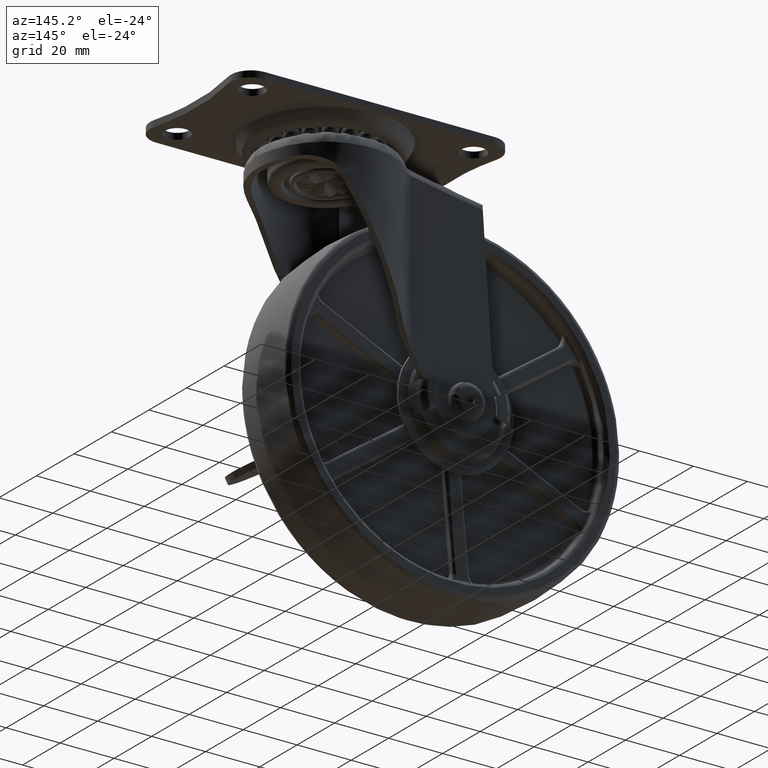
[diagram: clean part render]
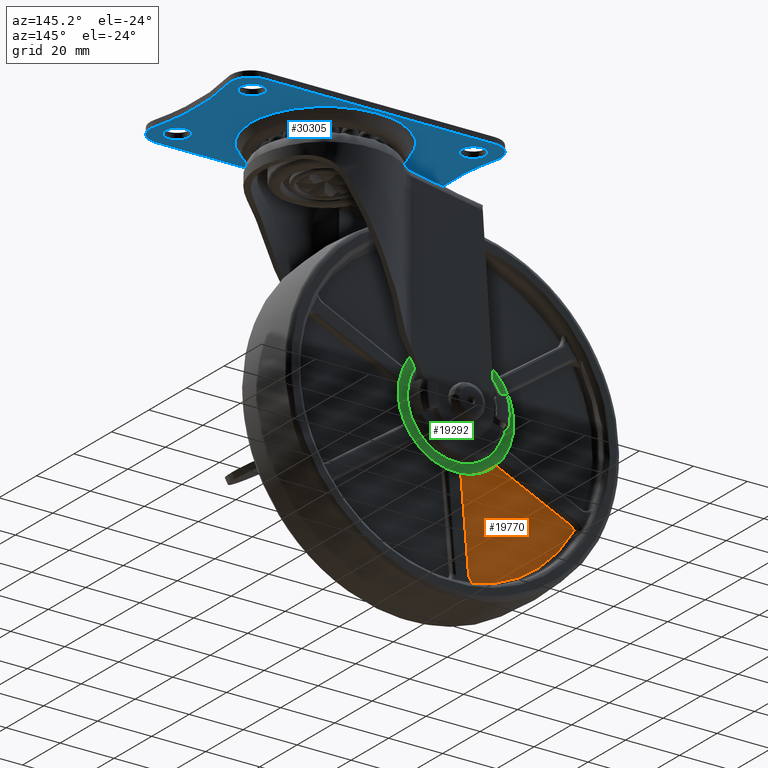
[diagram: same view with three faces highlighted in distinct colors, each labeled with its STEP entity id]
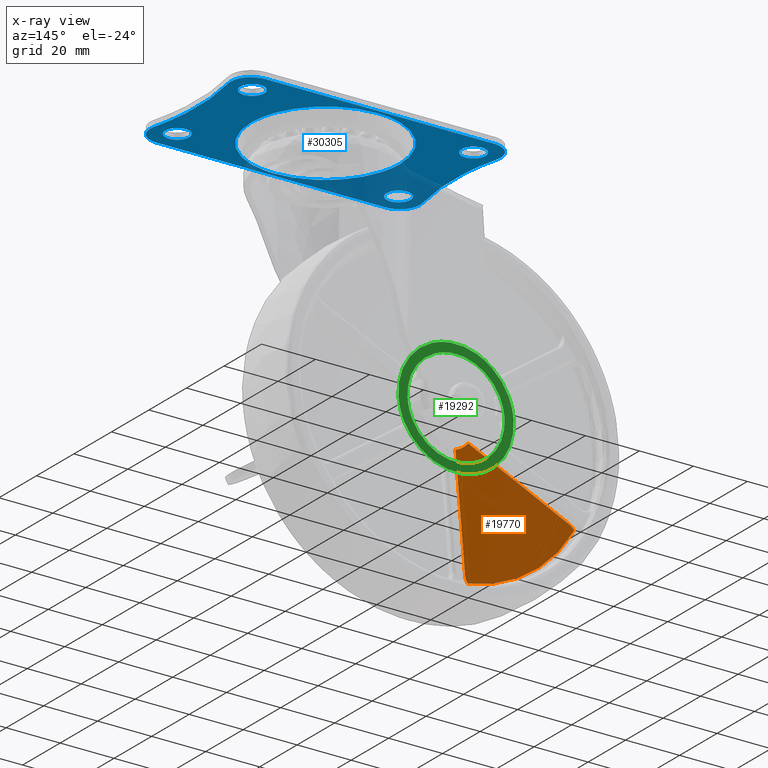
[diagram: x-ray of the same camera — body ghosted, the three highlighted faces saturated]
A machine part, auxiliary view with three faces highlighted in distinct colors.
The next image is the same camera in x-ray (body ghosted, the three faces saturated) — at least one of them is partly hidden behind the body in this view.
Their STEP definitions:

[orange] entity #19770 — the highlighted face is a freeform B-spline surface patch.
#15818=CARTESIAN_POINT('',(-3.754210223986700,7.500000000000000,-54.613724710466002));
#15819=VERTEX_POINT('',#15818);
#15848=CARTESIAN_POINT('',(-3.0,7.500000000000000,-52.276023119174297));
#15849=VERTEX_POINT('',#15848);
#15850=CARTESIAN_POINT('',(-3.754210223986700,7.500000000000000,-54.613724710466002));
#15851=CARTESIAN_POINT('',(-3.526080819406298,7.500000000000007,-54.297241552202962));
#15852=CARTESIAN_POINT('',(-3.139503482989372,7.499999999999996,-53.550188960875467));
#15853=CARTESIAN_POINT('',(-2.999710204292323,7.500000000000000,-52.718169552875153));
#15854=CARTESIAN_POINT('',(-3.0,7.500000000000000,-52.276023119174297));
#15855=B_SPLINE_CURVE_WITH_KNOTS('',3,(#15850,#15851,#15852,#15853,#15854),.UNSPECIFIED.,.F.,.U.,(4,1,4),(0.000000071150296,1.170372229220810,2.496726600823888),.UNSPECIFIED.);
#15856=EDGE_CURVE('',#15819,#15849,#15855,.T.);
#15939=CARTESIAN_POINT('',(-3.0,7.500000000000000,-11.029539681949579));
#15940=VERTEX_POINT('',#15939);
#15941=CARTESIAN_POINT('',(-3.0,7.500000000000000,-52.276023119174297));
#15942=CARTESIAN_POINT('',(-3.0,7.500000000000000,-11.029539681949579));
#15943=QUASI_UNIFORM_CURVE('',1,(#15941,#15942),.UNSPECIFIED.,.F.,.U.);
#15944=EDGE_CURVE('',#15849,#15940,#15943,.T.);
#16854=CARTESIAN_POINT('',(-45.419767882560201,7.500000000000000,-30.558103780352699));
#16855=VERTEX_POINT('',#16854);
#16887=CARTESIAN_POINT('',(-43.772364030027653,7.500000000000000,-28.736087770940451));
#16888=VERTEX_POINT('',#16887);
#16894=CARTESIAN_POINT('',(-43.772364030027653,7.500000000000000,-28.736087770940451));
#16895=CARTESIAN_POINT('',(-44.177986110781553,7.500000000000004,-28.969871932194881));
#16896=CARTESIAN_POINT('',(-44.824363315072013,7.499999999999998,-29.514214811508559));
#16897=CARTESIAN_POINT('',(-45.270379039674182,7.500000000000006,-30.226050552498972));
#16898=CARTESIAN_POINT('',(-45.419767882560201,7.500000000000000,-30.558103780352699));
#16899=B_SPLINE_CURVE_WITH_KNOTS('',3,(#16894,#16895,#16896,#16897,#16898),.UNSPECIFIED.,.F.,.U.,(4,1,4),(0.000000071151543,1.404388129151049,2.496726600823849),.UNSPECIFIED.);
#16900=EDGE_CURVE('',#16888,#16855,#16899,.T.);
#16941=CARTESIAN_POINT('',(-8.051861556616881,7.500000000000000,-8.112846052328100));
#16942=VERTEX_POINT('',#16941);
#16952=CARTESIAN_POINT('',(-8.051861556616881,7.500000000000000,-8.112846052328100));
#16953=CARTESIAN_POINT('',(-43.772364030027653,7.500000000000000,-28.736087770940451));
#16954=QUASI_UNIFORM_CURVE('',1,(#16952,#16953),.UNSPECIFIED.,.F.,.U.);
#16955=EDGE_CURVE('',#16942,#16888,#16954,.T.);
#19733=CARTESIAN_POINT('',(-45.419767882560201,7.500000000000000,-30.558103780352699));
#19734=CARTESIAN_POINT('',(-43.609736960011134,7.500000000000002,-33.248974728528943));
#19735=CARTESIAN_POINT('',(-40.411395780435527,7.500000000000021,-37.194451417430678));
#19736=CARTESIAN_POINT('',(-34.620298148930999,7.500000000000007,-42.601150187488493));
#19737=CARTESIAN_POINT('',(-29.020267404686589,7.499999999999961,-46.625544773615687));
#19738=CARTESIAN_POINT('',(-21.660334474637740,7.499999999999929,-50.499520021979862));
#19739=CARTESIAN_POINT('',(-13.420539005613159,7.500000000000198,-53.369977065254510));
#19740=CARTESIAN_POINT('',(-6.989570762033117,7.499999999999834,-54.391577797609777));
#19741=CARTESIAN_POINT('',(-3.754210223986700,7.500000000000000,-54.613724710466002));
#19742=B_SPLINE_CURVE_WITH_KNOTS('',3,(#19733,#19734,#19735,#19736,#19737,#19738,#19739,#19740,#19741),.UNSPECIFIED.,.F.,.U.,(4,1,1,1,1,1,4),(0.000000043338687,9.728924780902183,15.177130503832350,23.738637583906339,30.354232765353760,40.083185701890663,49.812110439454869),.UNSPECIFIED.);
#19743=EDGE_CURVE('',#16855,#15819,#19742,.T.);
#19750=CARTESIAN_POINT('',(-47.538636798902061,7.500000000000000,-5.790127419615635));
#19751=CARTESIAN_POINT('',(-47.538636798902061,7.500000000000000,-56.936441264427202));
#19752=CARTESIAN_POINT('',(-0.881131462920420,7.500000000000000,-5.790127419615635));
#19753=CARTESIAN_POINT('',(-0.881131462920420,7.500000000000000,-56.936441264427202));
#19754=B_SPLINE_SURFACE_WITH_KNOTS('',1,1,((#19750,#19752),(#19751,#19753)),.UNSPECIFIED.,.F.,.F.,.U.,(2,2),(2,2),(0.0,51.146313844811559),(0.0,46.657505335981639),.UNSPECIFIED.);
#19755=ORIENTED_EDGE('',*,*,#15944,.F.);
#19756=ORIENTED_EDGE('',*,*,#15856,.F.);
#19757=ORIENTED_EDGE('',*,*,#19743,.F.);
#19758=ORIENTED_EDGE('',*,*,#16900,.F.);
#19759=ORIENTED_EDGE('',*,*,#16955,.F.);
#19760=CARTESIAN_POINT('',(-8.051861556616881,7.500000000000000,-8.112846052328100));
#19761=CARTESIAN_POINT('',(-7.310731054445864,7.500000000000016,-8.848973468509387));
#19762=CARTESIAN_POINT('',(-5.723758996752141,7.499999999999966,-10.040831458099509));
#19763=CARTESIAN_POINT('',(-3.889424334452520,7.500000000000035,-10.787833867550120));
#19764=CARTESIAN_POINT('',(-3.0,7.500000000000000,-11.029539681949579));
#19765=B_SPLINE_CURVE_WITH_KNOTS('',3,(#19760,#19761,#19762,#19763,#19764),.UNSPECIFIED.,.F.,.U.,(4,1,4),(0.000000024825960,3.133664931382584,5.898686501279778),.UNSPECIFIED.);
#19766=EDGE_CURVE('',#16942,#15940,#19765,.T.);
#19767=ORIENTED_EDGE('',*,*,#19766,.T.);
#19768=EDGE_LOOP('',(#19755,#19756,#19757,#19758,#19759,#19767));
#19769=FACE_OUTER_BOUND('',#19768,.T.);
#19770=ADVANCED_FACE('',(#19769),#19754,.F.);

[blue] entity #30305 — the highlighted face is a freeform B-spline surface patch.
#26216=CARTESIAN_POINT('',(2.400000000000000,20.0,83.199996999999996));
#26217=VERTEX_POINT('',#26216);
#26218=CARTESIAN_POINT('',(1.068699980865174,23.153263424187621,83.199997000106819));
#26219=VERTEX_POINT('',#26218);
#26220=CARTESIAN_POINT('',(2.400000000000000,20.0,83.199996999999996));
#26221=CARTESIAN_POINT('',(2.400799535555400,20.622666120967740,83.199997000021142));
#26222=CARTESIAN_POINT('',(2.146818653241267,21.793706653572450,83.199997000060634));
#26223=CARTESIAN_POINT('',(1.462756383495197,22.770463711283369,83.199997000093859));
#26224=CARTESIAN_POINT('',(1.068699980865174,23.153263424187621,83.199997000106819));
#26225=B_SPLINE_CURVE_WITH_KNOTS('',3,(#26220,#26221,#26222,#26223,#26224),.UNSPECIFIED.,.F.,.U.,(4,1,4),(0.000000119754218,1.867655777875394,3.515639993302355),.UNSPECIFIED.);
#26226=EDGE_CURVE('',#26217,#26219,#26225,.T.);
#26228=CARTESIAN_POINT('',(-1.999995359596425,15.600000000002449,83.199996999999996));
#26229=VERTEX_POINT('',#26228);
#26230=CARTESIAN_POINT('',(-1.999995359596425,15.600000000002449,83.199996999999996));
#26231=CARTESIAN_POINT('',(-1.604018796670275,15.599859424816639,83.199996999999840));
#26232=CARTESIAN_POINT('',(-0.848138780554023,15.702749843455379,83.199997000000323));
#26233=CARTESIAN_POINT('',(0.123630603866510,16.105242926993100,83.199996999999755));
#26234=CARTESIAN_POINT('',(1.010910588933266,16.730059546941678,83.199997000000252));
#26235=CARTESIAN_POINT('',(1.700145158964370,17.529082206929210,83.199996999999883));
#26236=CARTESIAN_POINT('',(2.256097337983336,18.668315929265560,83.199997000000096));
#26237=CARTESIAN_POINT('',(2.400373835175242,19.495981843009730,83.199996999999854));
#26238=CARTESIAN_POINT('',(2.400000000000000,20.0,83.199996999999996));
#26239=B_SPLINE_CURVE_WITH_KNOTS('',3,(#26230,#26231,#26232,#26233,#26234,#26235,#26236,#26237,#26238),.UNSPECIFIED.,.F.,.U.,(4,1,1,1,1,1,4),(0.000000460141260,1.187911865419256,2.267926155748829,3.131933689348136,4.427776626393058,5.399748828108492,6.911674659631110),.UNSPECIFIED.);
#26240=EDGE_CURVE('',#26229,#26217,#26239,.T.);
#26242=CARTESIAN_POINT('',(-6.400000000000000,20.0,83.199996999999996));
#26243=VERTEX_POINT('',#26242);
#26244=CARTESIAN_POINT('',(-6.400000000000000,20.0,83.199996999999996));
#26245=CARTESIAN_POINT('',(-6.401058096501204,19.351824670858559,83.199996999999968));
#26246=CARTESIAN_POINT('',(-6.181251046900532,18.380831884591942,83.199996999999968));
#26247=CARTESIAN_POINT('',(-5.516009738540494,17.301759607233471,83.199997000000138));
#26248=CARTESIAN_POINT('',(-4.767894267445040,16.515692348303030,83.199996999999826));
#26249=CARTESIAN_POINT('',(-3.619599102942596,15.807933617418540,83.199996999999996));
#26250=CARTESIAN_POINT('',(-2.576010479614628,15.599416306583141,83.199996999999968));
#26251=CARTESIAN_POINT('',(-1.999995359596425,15.600000000002449,83.199996999999996));
#26252=B_SPLINE_CURVE_WITH_KNOTS('',3,(#26244,#26245,#26246,#26247,#26248,#26249,#26250,#26251),.UNSPECIFIED.,.F.,.U.,(4,1,1,1,1,4),(0.000000453790209,1.943913193949037,2.915876060195883,3.779744292028530,5.183760033784806,6.911679890577998),.UNSPECIFIED.);
#26253=EDGE_CURVE('',#26243,#26229,#26252,.T.);
#26255=CARTESIAN_POINT('',(-4.972597612752072,23.244021208731262,83.199996999895873));
#26256=VERTEX_POINT('',#26255);
#26257=CARTESIAN_POINT('',(-4.972597612752072,23.244021208731262,83.199996999895873));
#26258=CARTESIAN_POINT('',(-5.393286645131396,22.859332975310078,83.199996999908265));
#26259=CARTESIAN_POINT('',(-6.126939411156565,21.861010277236922,83.199996999940311));
#26260=CARTESIAN_POINT('',(-6.401029219777990,20.646129277138112,83.199996999979248));
#26261=CARTESIAN_POINT('',(-6.400000000000000,20.0,83.199996999999996));
#26262=B_SPLINE_CURVE_WITH_KNOTS('',3,(#26257,#26258,#26259,#26260,#26261),.UNSPECIFIED.,.F.,.U.,(4,1,4),(0.000000100461849,1.709942681407247,3.647840712105346),.UNSPECIFIED.);
#26263=EDGE_CURVE('',#26256,#26243,#26262,.T.);
#26341=CARTESIAN_POINT('',(-2.000004640403567,24.399999999997561,83.199996999999996));
#26342=VERTEX_POINT('',#26341);
#26343=CARTESIAN_POINT('',(1.068699980865174,23.153263424187621,83.199997000106819));
#26344=CARTESIAN_POINT('',(0.688689933838954,23.523704204546330,83.199997000093532));
#26345=CARTESIAN_POINT('',(-0.267252927607883,24.163944887498811,83.199997000060478));
#26346=CARTESIAN_POINT('',(-1.398519056287686,24.400772161706389,83.199997000020886));
#26347=CARTESIAN_POINT('',(-2.000004640403567,24.399999999997561,83.199996999999996));
#26348=B_SPLINE_CURVE_WITH_KNOTS('',3,(#26343,#26344,#26345,#26346,#26347),.UNSPECIFIED.,.F.,.U.,(4,1,4),(0.000000100950083,1.591919650142233,3.396041165762850),.UNSPECIFIED.);
#26349=EDGE_CURVE('',#26219,#26342,#26348,.T.);
#26371=CARTESIAN_POINT('',(-2.000004640403567,24.399999999997561,83.199996999999996));
#26372=CARTESIAN_POINT('',(-2.441980346855339,24.400174269224440,83.199996999984421));
#26373=CARTESIAN_POINT('',(-3.529864116387667,24.234758873100631,83.199996999946805));
#26374=CARTESIAN_POINT('',(-4.496907369686241,23.681344106966140,83.199996999912187));
#26375=CARTESIAN_POINT('',(-4.972597612752072,23.244021208731262,83.199996999895873));
#26376=B_SPLINE_CURVE_WITH_KNOTS('',3,(#26371,#26372,#26373,#26374,#26375),.UNSPECIFIED.,.F.,.U.,(4,1,4),(0.000000111657422,1.325955100328038,3.263834433322506),.UNSPECIFIED.);
#26377=EDGE_CURVE('',#26342,#26256,#26376,.T.);
#26408=CARTESIAN_POINT('',(84.399992000000012,20.0,83.199996999999996));
#26409=VERTEX_POINT('',#26408);
#26410=CARTESIAN_POINT('',(83.068691980865182,23.153263424187621,83.199997000106819));
#26411=VERTEX_POINT('',#26410);
#26412=CARTESIAN_POINT('',(84.399992000000012,20.0,83.199996999999996));
#26413=CARTESIAN_POINT('',(84.400140684213056,20.402844648393419,83.199997000013582));
#26414=CARTESIAN_POINT('',(84.303738304262112,21.098525725502370,83.199997000037243));
#26415=CARTESIAN_POINT('',(83.872924178677550,22.194634916949241,83.199997000074333));
#26416=CARTESIAN_POINT('',(83.410112840787008,22.821415895486140,83.199997000095564));
#26417=CARTESIAN_POINT('',(83.068691980865182,23.153263424187621,83.199997000106819));
#26418=B_SPLINE_CURVE_WITH_KNOTS('',3,(#26412,#26413,#26414,#26415,#26416,#26417),.UNSPECIFIED.,.F.,.U.,(4,1,1,4),(0.000000119753559,1.208505855995476,2.087379451804488,3.515639993302360),.UNSPECIFIED.);
#26419=EDGE_CURVE('',#26409,#26411,#26418,.T.);
#26421=CARTESIAN_POINT('',(79.999996640403580,15.600000000002449,83.199996999999996));
#26422=VERTEX_POINT('',#26421);
#26423=CARTESIAN_POINT('',(79.999996640403580,15.600000000002449,83.199996999999996));
#26424=CARTESIAN_POINT('',(80.576052455176310,15.599465771141871,83.199997000000096));
#26425=CARTESIAN_POINT('',(81.475492152860141,15.779279810999791,83.199996999999783));
#26426=CARTESIAN_POINT('',(82.713048846329414,16.460464747852999,83.199996999999925));
#26427=CARTESIAN_POINT('',(83.591298872677697,17.338561865424460,83.199997000000465));
#26428=CARTESIAN_POINT('',(84.243637017796303,18.596281492250171,83.199996999999371));
#26429=CARTESIAN_POINT('',(84.400323596427796,19.496006144316130,83.199997000000252));
#26430=CARTESIAN_POINT('',(84.399992000000012,20.0,83.199996999999996));
#26431=B_SPLINE_CURVE_WITH_KNOTS('',3,(#26423,#26424,#26425,#26426,#26427,#26428,#26429,#26430),.UNSPECIFIED.,.F.,.U.,(4,1,1,1,1,4),(0.000000460139663,1.727919010387877,2.699934121718611,4.211740996627755,5.399748828107682,6.911674659631200),.UNSPECIFIED.);
#26432=EDGE_CURVE('',#26422,#26409,#26431,.T.);
#26434=CARTESIAN_POINT('',(75.599992000000000,20.0,83.199996999999996));
#26435=VERTEX_POINT('',#26434);
#26436=CARTESIAN_POINT('',(75.599992000000000,20.0,83.199996999999996));
#26437=CARTESIAN_POINT('',(75.599783752835165,19.532010594136960,83.199996999999996));
#26438=CARTESIAN_POINT('',(75.756373504388108,18.560231574206369,83.199997000000081));
#26439=CARTESIAN_POINT('',(76.462212483641494,17.239033719432911,83.199996999999854));
#26440=CARTESIAN_POINT('',(77.463910273512155,16.331570671551091,83.199997000000351));
#26441=CARTESIAN_POINT('',(78.668322605253451,15.743909639353230,83.199996999999541));
#26442=CARTESIAN_POINT('',(79.495975399131055,15.599628591205500,83.199997000000323));
#26443=CARTESIAN_POINT('',(79.999996640403580,15.600000000002449,83.199996999999996));
#26444=B_SPLINE_CURVE_WITH_KNOTS('',3,(#26436,#26437,#26438,#26439,#26440,#26441,#26442,#26443),.UNSPECIFIED.,.F.,.U.,(4,1,1,1,1,4),(0.000000453782085,1.403923765613697,2.915876060193221,4.427779982945244,5.399752912186087,6.911679890577974),.UNSPECIFIED.);
#26445=EDGE_CURVE('',#26435,#26422,#26444,.T.);
#26447=CARTESIAN_POINT('',(77.027394387247938,23.244021208731251,83.199996999895873));
#26448=VERTEX_POINT('',#26447);
#26449=CARTESIAN_POINT('',(77.027394387247938,23.244021208731251,83.199996999895873));
#26450=CARTESIAN_POINT('',(76.606727738399215,22.859325771769910,83.199996999908208));
#26451=CARTESIAN_POINT('',(75.872945556175765,21.861044003073300,83.199996999940353));
#26452=CARTESIAN_POINT('',(75.599056870434595,20.646107214108170,83.199996999979220));
#26453=CARTESIAN_POINT('',(75.599992000000000,20.0,83.199996999999996));
#26454=B_SPLINE_CURVE_WITH_KNOTS('',3,(#26449,#26450,#26451,#26452,#26453),.UNSPECIFIED.,.F.,.U.,(4,1,4),(0.000000100462830,1.709942681407322,3.647840712105341),.UNSPECIFIED.);
#26455=EDGE_CURVE('',#26448,#26435,#26454,.T.);
#26533=CARTESIAN_POINT('',(79.999987359596446,24.399999999997551,83.199996999999996));
#26534=VERTEX_POINT('',#26533);
#26535=CARTESIAN_POINT('',(83.068691980865182,23.153263424187621,83.199997000106819));
#26536=CARTESIAN_POINT('',(82.789905151913842,23.424749015386290,83.199997000097170));
#26537=CARTESIAN_POINT('',(82.188315357819576,23.871631025562689,83.199997000076152));
#26538=CARTESIAN_POINT('',(81.131928776796869,24.300830202457011,83.199997000039303));
#26539=CARTESIAN_POINT('',(80.389116201626535,24.400105740590710,83.199997000013752));
#26540=CARTESIAN_POINT('',(79.999987359596446,24.399999999997551,83.199996999999996));
#26541=B_SPLINE_CURVE_WITH_KNOTS('',3,(#26535,#26536,#26537,#26538,#26539,#26540),.UNSPECIFIED.,.F.,.U.,(4,1,1,4),(0.000000100948832,1.167393268753063,2.228647997841502,3.396041165762836),.UNSPECIFIED.);
#26542=EDGE_CURVE('',#26411,#26534,#26541,.T.);
#26564=CARTESIAN_POINT('',(79.999987359596446,24.399999999997551,83.199996999999996));
#26565=CARTESIAN_POINT('',(79.489970060148636,24.400338504918981,83.199996999981991));
#26566=CARTESIAN_POINT('',(78.402340879231161,24.208653578969638,83.199996999944418));
#26567=CARTESIAN_POINT('',(77.453137842298617,23.635008698720270,83.199996999910539));
#26568=CARTESIAN_POINT('',(77.027394387247938,23.244021208731251,83.199996999895873));
#26569=B_SPLINE_CURVE_WITH_KNOTS('',3,(#26564,#26565,#26566,#26567,#26568),.UNSPECIFIED.,.F.,.U.,(4,1,4),(0.000000111657901,1.529954990184196,3.263834433322495),.UNSPECIFIED.);
#26570=EDGE_CURVE('',#26534,#26448,#26569,.T.);
#26601=CARTESIAN_POINT('',(2.400000000000000,-20.0,83.199996999999996));
#26602=VERTEX_POINT('',#26601);
#26603=CARTESIAN_POINT('',(1.068699980865175,-16.846736575812379,83.199997000106833));
#26604=VERTEX_POINT('',#26603);
#26605=CARTESIAN_POINT('',(2.400000000000000,-20.0,83.199996999999996));
#26606=CARTESIAN_POINT('',(2.400890506974832,-19.377313454771301,83.199997000021185));
#26607=CARTESIAN_POINT('',(2.146714614825044,-18.206324034732312,83.199997000060648));
#26608=CARTESIAN_POINT('',(1.462781430739637,-17.229530689580461,83.199997000093902));
#26609=CARTESIAN_POINT('',(1.068699980865175,-16.846736575812379,83.199997000106833));
#26610=B_SPLINE_CURVE_WITH_KNOTS('',3,(#26605,#26606,#26607,#26608,#26609),.UNSPECIFIED.,.F.,.U.,(4,1,4),(0.000000119753706,1.867655777875241,3.515639993302359),.UNSPECIFIED.);
#26611=EDGE_CURVE('',#26602,#26604,#26610,.T.);
#26613=CARTESIAN_POINT('',(-1.999995359596422,-24.399999999997551,83.199996999999996));
#26614=VERTEX_POINT('',#26613);
#26615=CARTESIAN_POINT('',(-1.999995359596422,-24.399999999997551,83.199996999999996));
#26616=CARTESIAN_POINT('',(-1.604018748452339,-24.400139829813789,83.199996999999939));
#26617=CARTESIAN_POINT('',(-0.848137184765163,-24.297253614100299,83.199997000000081));
#26618=CARTESIAN_POINT('',(0.123643479760236,-23.894765034156620,83.199997000000039));
#26619=CARTESIAN_POINT('',(0.892509216892797,-23.353171242076382,83.199997000000010));
#26620=CARTESIAN_POINT('',(1.565971305880147,-22.645893170007731,83.199997000000067));
#26621=CARTESIAN_POINT('',(2.206347015126105,-21.547516657640259,83.199997000000195));
#26622=CARTESIAN_POINT('',(2.400592288597176,-20.576045039347559,83.199996999999840));
#26623=CARTESIAN_POINT('',(2.400000000000000,-20.0,83.199996999999996));
#26624=B_SPLINE_CURVE_WITH_KNOTS('',3,(#26615,#26616,#26617,#26618,#26619,#26620,#26621,#26622,#26623),.UNSPECIFIED.,.F.,.U.,(4,1,1,1,1,1,4),(0.000000460142672,1.187911865420515,2.267926155749878,3.131933689348963,3.995801264283309,5.183756107355195,6.911674659631111),.UNSPECIFIED.);
#26625=EDGE_CURVE('',#26614,#26602,#26624,.T.);
#26627=CARTESIAN_POINT('',(-6.400000000000000,-20.0,83.199996999999996));
#26628=VERTEX_POINT('',#26627);
#26629=CARTESIAN_POINT('',(-6.400000000000000,-20.0,83.199996999999996));
#26630=CARTESIAN_POINT('',(-6.400254218508813,-20.467988923095760,83.199997000000039));
#26631=CARTESIAN_POINT('',(-6.266641535357239,-21.295787225386960,83.199996999999939));
#26632=CARTESIAN_POINT('',(-5.785826197811351,-22.312139327766229,83.199996999999982));
#26633=CARTESIAN_POINT('',(-5.073850301362825,-23.224862104453329,83.199997000000153));
#26634=CARTESIAN_POINT('',(-4.134994618775261,-23.921215879763391,83.199996999999925));
#26635=CARTESIAN_POINT('',(-3.007891153336654,-24.324130291244849,83.199996999999371));
#26636=CARTESIAN_POINT('',(-2.323966624090236,-24.400045181945501,83.199997000000678));
#26637=CARTESIAN_POINT('',(-1.999995359596422,-24.399999999997551,83.199996999999996));
#26638=B_SPLINE_CURVE_WITH_KNOTS('',3,(#26629,#26630,#26631,#26632,#26633,#26634,#26635,#26636,#26637),.UNSPECIFIED.,.F.,.U.,(4,1,1,1,1,1,4),(0.000000453789881,1.403923765618771,2.483900366505756,3.347908455528383,4.859763486358876,5.939740086029179,6.911679890578010),.UNSPECIFIED.);
#26639=EDGE_CURVE('',#26628,#26614,#26638,.T.);
#26641=CARTESIAN_POINT('',(-4.972597612752070,-16.755978791268749,83.199996999895887));
#26642=VERTEX_POINT('',#26641);
#26643=CARTESIAN_POINT('',(-4.972597612752070,-16.755978791268749,83.199996999895887));
#26644=CARTESIAN_POINT('',(-5.337056813560959,-17.089474880362761,83.199996999906716));
#26645=CARTESIAN_POINT('',(-5.880481469690256,-17.789704375113850,83.199996999929041));
#26646=CARTESIAN_POINT('',(-6.315474709796213,-18.936090892988549,83.199996999965848));
#26647=CARTESIAN_POINT('',(-6.400054353635727,-19.658021810273521,83.199996999988954));
#26648=CARTESIAN_POINT('',(-6.400000000000000,-20.0,83.199996999999996));
#26649=B_SPLINE_CURVE_WITH_KNOTS('',3,(#26643,#26644,#26645,#26646,#26647,#26648),.UNSPECIFIED.,.F.,.U.,(4,1,1,4),(0.000000100462923,1.481963510723092,2.621883550349220,3.647840712105345),.UNSPECIFIED.);
#26650=EDGE_CURVE('',#26642,#26628,#26649,.T.);
#26731=CARTESIAN_POINT('',(-2.000004640403565,-15.600000000002449,83.199997000000010));
#26732=VERTEX_POINT('',#26731);
#26733=CARTESIAN_POINT('',(1.068699980865175,-16.846736575812379,83.199997000106833));
#26734=CARTESIAN_POINT('',(0.688691385133558,-16.476292628444298,83.199997000093632));
#26735=CARTESIAN_POINT('',(-0.267254991946722,-15.836061530260601,83.199997000060151));
#26736=CARTESIAN_POINT('',(-1.398517389828270,-15.599223599360290,83.199997000021128));
#26737=CARTESIAN_POINT('',(-2.000004640403565,-15.600000000002449,83.199997000000010));
#26738=B_SPLINE_CURVE_WITH_KNOTS('',3,(#26733,#26734,#26735,#26736,#26737),.UNSPECIFIED.,.F.,.U.,(4,1,4),(0.000000100949847,1.591919650142195,3.396041165762844),.UNSPECIFIED.);
#26739=EDGE_CURVE('',#26604,#26732,#26738,.T.);
#26761=CARTESIAN_POINT('',(-2.000004640403565,-15.600000000002449,83.199997000000010));
#26762=CARTESIAN_POINT('',(-2.305985279749029,-15.599967901073430,83.199996999989352));
#26763=CARTESIAN_POINT('',(-2.985938126169736,-15.671140890568910,83.199996999965535));
#26764=CARTESIAN_POINT('',(-4.021348539554015,-16.032873891580120,83.199996999928686));
#26765=CARTESIAN_POINT('',(-4.671899782769641,-16.480239995537762,83.199996999906574));
#26766=CARTESIAN_POINT('',(-4.972597612752070,-16.755978791268749,83.199996999895887));
#26767=B_SPLINE_CURVE_WITH_KNOTS('',3,(#26761,#26762,#26763,#26764,#26765,#26766),.UNSPECIFIED.,.F.,.U.,(4,1,1,4),(0.000000111657814,0.917957134610278,2.039895935284233,3.263834433322501),.UNSPECIFIED.);
#26768=EDGE_CURVE('',#26732,#26642,#26767,.T.);
#26799=CARTESIAN_POINT('',(84.399992000000012,-20.0,83.199996999999996));
#26800=VERTEX_POINT('',#26799);
#26801=CARTESIAN_POINT('',(83.068691980865168,-16.846736575812368,83.199997000106819));
#26802=VERTEX_POINT('',#26801);
#26803=CARTESIAN_POINT('',(84.399992000000012,-20.0,83.199996999999996));
#26804=CARTESIAN_POINT('',(84.400798713841013,-19.377332402436220,83.199997000021099));
#26805=CARTESIAN_POINT('',(84.146802121767593,-18.206294652979409,83.199997000060776));
#26806=CARTESIAN_POINT('',(83.462752479721203,-17.229535629975469,83.199997000093902));
#26807=CARTESIAN_POINT('',(83.068691980865168,-16.846736575812368,83.199997000106819));
#26808=B_SPLINE_CURVE_WITH_KNOTS('',3,(#26803,#26804,#26805,#26806,#26807),.UNSPECIFIED.,.F.,.U.,(4,1,4),(0.000000119752971,1.867655777875099,3.515639993302362),.UNSPECIFIED.);
#26809=EDGE_CURVE('',#26800,#26802,#26808,.T.);
#26811=CARTESIAN_POINT('',(79.999996640403566,-24.399999999997551,83.199996999999982));
#26812=VERTEX_POINT('',#26811);
#26813=CARTESIAN_POINT('',(79.999996640403566,-24.399999999997551,83.199996999999982));
#26814=CARTESIAN_POINT('',(80.395973024921574,-24.400144635197918,83.199997000000039));
#26815=CARTESIAN_POINT('',(81.079817655936125,-24.306971324115882,83.199996999999911));
#26816=CARTESIAN_POINT('',(82.193684431698458,-23.877681032691228,83.199997000000067));
#26817=CARTESIAN_POINT('',(83.073861802878312,-23.224876779195430,83.199996999999954));
#26818=CARTESIAN_POINT('',(83.718997309919146,-22.397660014639872,83.199996999999982));
#26819=CARTESIAN_POINT('',(84.235003504712580,-21.403508491525010,83.199997000000081));
#26820=CARTESIAN_POINT('',(84.400668862490818,-20.576091054260232,83.199996999999868));
#26821=CARTESIAN_POINT('',(84.399992000000012,-20.0,83.199996999999996));
#26822=B_SPLINE_CURVE_WITH_KNOTS('',3,(#26813,#26814,#26815,#26816,#26817,#26818,#26819,#26820,#26821),.UNSPECIFIED.,.F.,.U.,(4,1,1,1,1,1,4),(0.000000460142514,1.187911865420777,2.051915311974426,3.563769192848548,4.427776626393541,5.183756107355068,6.911674659631052),.UNSPECIFIED.);
#26823=EDGE_CURVE('',#26812,#26800,#26822,.T.);
#26825=CARTESIAN_POINT('',(75.599992000000000,-20.0,83.199996999999996));
#26826=VERTEX_POINT('',#26825);
#26827=CARTESIAN_POINT('',(75.599992000000000,-20.0,83.199996999999996));
#26828=CARTESIAN_POINT('',(75.599851623436393,-20.395977559025621,83.199997000000096));
#26829=CARTESIAN_POINT('',(75.702782023021499,-21.151824947931210,83.199996999999755));
#26830=CARTESIAN_POINT('',(76.188251224266523,-22.324834220980438,83.199997000000593));
#26831=CARTESIAN_POINT('',(76.929853259917536,-23.228375976408351,83.199996999998902));
#26832=CARTESIAN_POINT('',(77.876385000206710,-23.894740490577920,83.199997000000778));
#26833=CARTESIAN_POINT('',(78.848139228894283,-24.297250420888869,83.199997000000309));
#26834=CARTESIAN_POINT('',(79.604015729870667,-24.400146811173311,83.199996999999215));
#26835=CARTESIAN_POINT('',(79.999996640403566,-24.399999999997551,83.199996999999982));
#26836=B_SPLINE_CURVE_WITH_KNOTS('',3,(#26827,#26828,#26829,#26830,#26831,#26832,#26833,#26834,#26835),.UNSPECIFIED.,.F.,.U.,(4,1,1,1,1,1,4),(0.000000453793261,1.187912758833474,2.267927866004730,3.779744292029767,4.643752479137986,5.723767586565645,6.911679890577959),.UNSPECIFIED.);
#26837=EDGE_CURVE('',#26826,#26812,#26836,.T.);
#26839=CARTESIAN_POINT('',(77.027394387247938,-16.755978791268749,83.199996999895873));
#26840=VERTEX_POINT('',#26839);
#26841=CARTESIAN_POINT('',(77.027394387247938,-16.755978791268749,83.199996999895873));
#26842=CARTESIAN_POINT('',(76.719119222711782,-17.038258956708049,83.199996999905039));
#26843=CARTESIAN_POINT('',(76.257052894514942,-17.602470149229578,83.199996999922917));
#26844=CARTESIAN_POINT('',(75.735876988456880,-18.708294187663430,83.199996999958756));
#26845=CARTESIAN_POINT('',(75.599642126717342,-19.505970091598339,83.199996999983966));
#26846=CARTESIAN_POINT('',(75.599992000000000,-20.0,83.199996999999996));
#26847=B_SPLINE_CURVE_WITH_KNOTS('',3,(#26841,#26842,#26843,#26844,#26845,#26846),.UNSPECIFIED.,.F.,.U.,(4,1,1,4),(0.000000100461040,1.253963838711266,2.165875884544150,3.647840712105342),.UNSPECIFIED.);
#26848=EDGE_CURVE('',#26840,#26826,#26847,.T.);
#26928=CARTESIAN_POINT('',(79.999987359596446,-15.600000000002449,83.199996999999996));
#26929=VERTEX_POINT('',#26928);
#26930=CARTESIAN_POINT('',(83.068691980865168,-16.846736575812368,83.199997000106819));
#26931=CARTESIAN_POINT('',(82.739250902542921,-16.525826593221488,83.199997000095394));
#26932=CARTESIAN_POINT('',(82.124854730049549,-16.092235174642020,83.199997000073935));
#26933=CARTESIAN_POINT('',(81.061147745736662,-15.689790362876129,83.199997000037015));
#26934=CARTESIAN_POINT('',(80.389127370089895,-15.599857794923469,83.199997000013440));
#26935=CARTESIAN_POINT('',(79.999987359596446,-15.600000000002449,83.199996999999996));
#26936=B_SPLINE_CURVE_WITH_KNOTS('',3,(#26930,#26931,#26932,#26933,#26934,#26935),.UNSPECIFIED.,.F.,.U.,(4,1,1,4),(0.000000100948321,1.379670471071811,2.228647997841083,3.396041165762830),.UNSPECIFIED.);
#26937=EDGE_CURVE('',#26802,#26929,#26936,.T.);
#26959=CARTESIAN_POINT('',(79.999987359596446,-15.600000000002449,83.199996999999996));
#26960=CARTESIAN_POINT('',(79.489965160961646,-15.599614337749060,83.199996999982034));
#26961=CARTESIAN_POINT('',(78.402350781705252,-15.791426660005820,83.199996999944233));
#26962=CARTESIAN_POINT('',(77.453123077544674,-16.364946179129880,83.199996999910653));
#26963=CARTESIAN_POINT('',(77.027394387247938,-16.755978791268749,83.199996999895873));
#26964=B_SPLINE_CURVE_WITH_KNOTS('',3,(#26959,#26960,#26961,#26962,#26963),.UNSPECIFIED.,.F.,.U.,(4,1,4),(0.000000111657850,1.529954990183651,3.263834433322487),.UNSPECIFIED.);
#26965=EDGE_CURVE('',#26929,#26840,#26964,.T.);
#26988=CARTESIAN_POINT('',(38.999996053307562,-27.500033423175420,83.199996999999996));
#26989=VERTEX_POINT('',#26988);
#26990=CARTESIAN_POINT('',(19.292073411113929,-19.179403976951338,83.199997439510170));
#26991=VERTEX_POINT('',#26990);
#26992=CARTESIAN_POINT('',(38.999996053307562,-27.500033423175420,83.199996999999996));
#26993=CARTESIAN_POINT('',(37.054520857874550,-27.500337398322792,83.199997043386489));
#26994=CARTESIAN_POINT('',(33.507044785879224,-27.121990143651939,83.199997122499227));
#26995=CARTESIAN_POINT('',(28.787471001227392,-25.663930635412171,83.199997227751666));
#26996=CARTESIAN_POINT('',(23.958873023760940,-23.260276891771120,83.199997335434745));
#26997=CARTESIAN_POINT('',(20.967687423887359,-20.902242201389679,83.199997402142287));
#26998=CARTESIAN_POINT('',(19.292073411113929,-19.179403976951338,83.199997439510170));
#26999=B_SPLINE_CURVE_WITH_KNOTS('',3,(#26992,#26993,#26994,#26995,#26996,#26997,#26998),.UNSPECIFIED.,.F.,.U.,(4,1,1,1,4),(0.000000012783406,5.836405094280169,10.642857457288439,14.762670580147811,21.972348387395680),.UNSPECIFIED.);
#27000=EDGE_CURVE('',#26989,#26991,#26999,.T.);
#27033=CARTESIAN_POINT('',(59.275150481749172,-18.578752444321129,83.199996562000507));
#27034=VERTEX_POINT('',#27033);
#27040=CARTESIAN_POINT('',(59.275150481749172,-18.578752444321129,83.199996562000507));
#27041=CARTESIAN_POINT('',(58.192274217144067,-19.760723131772981,83.199996585393535));
#27042=CARTESIAN_POINT('',(55.906838526342632,-21.853829771953880,83.199996634765540));
#27043=CARTESIAN_POINT('',(51.603117872735019,-24.632319905841349,83.199996727737812));
#27044=CARTESIAN_POINT('',(46.005386302341158,-26.881944933151161,83.199996848663034));
#27045=CARTESIAN_POINT('',(41.493654546192190,-27.500928965857071,83.199996946130327));
#27046=CARTESIAN_POINT('',(38.999996053307562,-27.500033423175420,83.199996999999996));
#27047=B_SPLINE_CURVE_WITH_KNOTS('',3,(#27040,#27041,#27042,#27043,#27044,#27045,#27046),.UNSPECIFIED.,.F.,.U.,(4,1,1,1,4),(0.000000049049042,4.809042211522932,9.261886964170801,15.317682023139890,22.798434339153960),.UNSPECIFIED.);
#27048=EDGE_CURVE('',#27034,#26989,#27047,.T.);
#27075=CARTESIAN_POINT('',(11.499966576824299,0.0,83.199996999999996));
#27076=VERTEX_POINT('',#27075);
#27077=CARTESIAN_POINT('',(19.292073411113929,-19.179403976951338,83.199997439510170));
#27078=CARTESIAN_POINT('',(17.981156239474590,-17.832816966090530,83.199997408652195));
#27079=CARTESIAN_POINT('',(16.257897085708102,-15.653723251034499,83.199997358716644));
#27080=CARTESIAN_POINT('',(14.228321888753831,-12.097105102796149,83.199997277213981));
#27081=CARTESIAN_POINT('',(13.025651471813530,-9.236259617707429,83.199997211655727));
#27082=CARTESIAN_POINT('',(11.843647835419780,-5.084932097667910,83.199997116524884));
#27083=CARTESIAN_POINT('',(11.499499443048199,-2.100422439464542,83.199997048133213));
#27084=CARTESIAN_POINT('',(11.499966576824299,0.0,83.199996999999996));
#27085=B_SPLINE_CURVE_WITH_KNOTS('',3,(#27077,#27078,#27079,#27080,#27081,#27082,#27083,#27084),.UNSPECIFIED.,.F.,.U.,(4,1,1,1,1,4),(0.000000016690489,5.637859790621615,8.290984457771449,12.270611471098190,14.923728185124210,21.224871425642391),.UNSPECIFIED.);
#27086=EDGE_CURVE('',#26991,#27076,#27085,.T.);
#27088=CARTESIAN_POINT('',(39.000003946692424,27.500033423175420,83.199996999999996));
#27089=VERTEX_POINT('',#27088);
#27090=CARTESIAN_POINT('',(11.499966576824299,0.0,83.199996999999996));
#27091=CARTESIAN_POINT('',(11.499684667149641,1.912368719152933,83.199997000000153));
#27092=CARTESIAN_POINT('',(11.888773565901360,5.624477446247241,83.199996999999755));
#27093=CARTESIAN_POINT('',(13.663545530736600,11.228042975638569,83.199997000000224));
#27094=CARTESIAN_POINT('',(16.089996394420901,15.450608314657710,83.199996999999740));
#27095=CARTESIAN_POINT('',(18.948317656688630,18.932933945853851,83.199997000000025));
#27096=CARTESIAN_POINT('',(21.332276063213229,21.174965967592570,83.199997000000423));
#27097=CARTESIAN_POINT('',(24.344538526795379,23.352170516087909,83.199996999999186));
#27098=CARTESIAN_POINT('',(28.099507548495620,25.419326739712890,83.199997000001844));
#27099=CARTESIAN_POINT('',(33.150459665115697,27.087817438554289,83.199996999999641));
#27100=CARTESIAN_POINT('',(37.087636841576867,27.500298460872450,83.199996999997424));
#27101=CARTESIAN_POINT('',(39.000003946692424,27.500033423175420,83.199996999999996));
#27102=B_SPLINE_CURVE_WITH_KNOTS('',3,(#27090,#27091,#27092,#27093,#27094,#27095,#27096,#27097,#27098,#27099,#27100,#27101),.UNSPECIFIED.,.F.,.U.,(4,1,1,1,1,1,1,1,1,4),(0.000000030766202,5.737081902815696,11.136788490073110,17.548885675099829,20.248715979292740,24.635916188379511,27.335722273762990,31.385473463627370,37.460114871693342,43.197224754831957),.UNSPECIFIED.);
#27103=EDGE_CURVE('',#27076,#27089,#27102,.T.);
#27105=CARTESIAN_POINT('',(66.500033423175708,0.0,83.199996999999996));
#27106=VERTEX_POINT('',#27105);
#27107=CARTESIAN_POINT('',(39.000003946692424,27.500033423175420,83.199996999999996));
#27108=CARTESIAN_POINT('',(40.687376458566987,27.500205403692529,83.199997000000010));
#27109=CARTESIAN_POINT('',(43.949591636639532,27.198862697374562,83.199997000000138));
#27110=CARTESIAN_POINT('',(48.411110056051342,25.964184234193411,83.199996999999826));
#27111=CARTESIAN_POINT('',(52.820965908298582,23.944483740240941,83.199997000000437));
#27112=CARTESIAN_POINT('',(56.628660840795227,21.297659307697419,83.199996999999769));
#27113=CARTESIAN_POINT('',(59.818889179609002,18.107048356861181,83.199997000000252));
#27114=CARTESIAN_POINT('',(62.324522915649119,14.771665439874720,83.199996999999883));
#27115=CARTESIAN_POINT('',(64.293827047804598,11.087386670387151,83.199996999999939));
#27116=CARTESIAN_POINT('',(66.018667148310612,6.074242761584152,83.199997000001005));
#27117=CARTESIAN_POINT('',(66.500648679652912,2.362399425411972,83.199996999998049));
#27118=CARTESIAN_POINT('',(66.500033423175708,0.0,83.199996999999996));
#27119=B_SPLINE_CURVE_WITH_KNOTS('',3,(#27107,#27108,#27109,#27110,#27111,#27112,#27113,#27114,#27115,#27116,#27117,#27118),.UNSPECIFIED.,.F.,.U.,(4,1,1,1,1,1,1,1,1,4),(0.000000032121719,5.062121467507815,9.786862381485776,13.836621681275661,19.573759753599610,23.623473051945929,27.335719460736911,32.060433478623551,36.110201270341051,43.197220305961899),.UNSPECIFIED.);
#27120=EDGE_CURVE('',#27089,#27106,#27119,.T.);
#27122=CARTESIAN_POINT('',(66.500033423175708,0.0,83.199996999999996));
#27123=CARTESIAN_POINT('',(66.500128442856806,-1.593633398096196,83.199996962429594));
#27124=CARTESIAN_POINT('',(66.194615629636445,-5.099652488034060,83.199996879774233));
#27125=CARTESIAN_POINT('',(64.816070717287062,-9.927264383801862,83.199996765961984));
#27126=CARTESIAN_POINT('',(62.480246552866078,-14.598933157720211,83.199996655825885));
#27127=CARTESIAN_POINT('',(60.495530844896287,-17.247286018228891,83.199996593390253));
#27128=CARTESIAN_POINT('',(59.275150481749172,-18.578752444321129,83.199996562000507));
#27129=B_SPLINE_CURVE_WITH_KNOTS('',3,(#27122,#27123,#27124,#27125,#27126,#27127,#27128),.UNSPECIFIED.,.F.,.U.,(4,1,1,1,4),(0.000000021846727,4.780938738857227,10.518056282933831,14.980275791544310,20.398674127220112),.UNSPECIFIED.);
#27130=EDGE_CURVE('',#27106,#27034,#27129,.T.);
#30158=CARTESIAN_POINT('',(-15.994865419531580,-31.897099887584680,83.199996999999996));
#30159=CARTESIAN_POINT('',(93.994837128284871,-31.897099887584680,83.199996999999996));
#30160=CARTESIAN_POINT('',(-15.994865419531580,31.897101443264450,83.199996999999996));
#30161=CARTESIAN_POINT('',(93.994837128284871,31.897101443264450,83.199996999999996));
#30162=B_SPLINE_SURFACE_WITH_KNOTS('',1,1,((#30158,#30160),(#30159,#30161)),.UNSPECIFIED.,.F.,.F.,.U.,(2,2),(2,2),(0.0,109.989702547816510),(0.0,63.794201330849127),.UNSPECIFIED.);
#30163=CARTESIAN_POINT('',(-3.499990444322345,28.999999999994049,83.199996999999996));
#30164=VERTEX_POINT('',#30163);
#30165=CARTESIAN_POINT('',(81.499987156711214,28.999999999998550,83.199996999999996));
#30166=VERTEX_POINT('',#30165);
#30167=CARTESIAN_POINT('',(-3.499990444322345,28.999999999994049,83.199996999999996));
#30168=CARTESIAN_POINT('',(81.499987156711214,28.999999999998550,83.199996999999996));
#30169=QUASI_UNIFORM_CURVE('',1,(#30167,#30168),.UNSPECIFIED.,.F.,.U.);
#30170=EDGE_CURVE('',#30164,#30166,#30169,.T.);
#30171=ORIENTED_EDGE('',*,*,#30170,.T.);
#30172=CARTESIAN_POINT('',(88.794599946689317,19.756778091586199,83.199996999999996));
#30173=VERTEX_POINT('',#30172);
#30174=CARTESIAN_POINT('',(88.794599946689317,19.756778091586199,83.199996999999996));
#30175=CARTESIAN_POINT('',(88.925829620481238,20.305465252170681,83.199997000000110));
#30176=CARTESIAN_POINT('',(89.072254686958956,21.503111422730321,83.199996999999840));
#30177=CARTESIAN_POINT('',(88.883946373162772,23.091511923996780,83.199997000000124));
#30178=CARTESIAN_POINT('',(88.356979766003235,24.668192106213130,83.199996999999541));
#30179=CARTESIAN_POINT('',(87.641809414526179,25.897013999545869,83.199997000000380));
#30180=CARTESIAN_POINT('',(86.625719565895693,27.028553246919120,83.199996999999598));
#30181=CARTESIAN_POINT('',(85.369128391797361,28.010124635443560,83.199997000000479));
#30182=CARTESIAN_POINT('',(83.615569922407360,28.799625622648399,83.199996999999399));
#30183=CARTESIAN_POINT('',(82.205234793408195,29.000266414493709,83.199997000000309));
#30184=CARTESIAN_POINT('',(81.499987156711214,28.999999999998550,83.199996999999996));
#30185=B_SPLINE_CURVE_WITH_KNOTS('',3,(#30174,#30175,#30176,#30177,#30178,#30179,#30180,#30181,#30182,#30183,#30184),.UNSPECIFIED.,.F.,.U.,(4,1,1,1,1,1,1,1,4),(0.000000457889882,1.692494163042555,3.596679542527502,4.760355922386829,6.664532583396591,7.828041059611988,9.309015959139114,11.424739109626090,13.540425885922961),.UNSPECIFIED.);
#30186=EDGE_CURVE('',#30173,#30166,#30185,.T.);
#30187=ORIENTED_EDGE('',*,*,#30186,.F.);
#30188=CARTESIAN_POINT('',(88.794588031726292,-19.756728233502852,83.199996999999996));
#30189=VERTEX_POINT('',#30188);
#30190=CARTESIAN_POINT('',(88.794599946689317,19.756778091586199,83.199996999999996));
#30191=CARTESIAN_POINT('',(87.828848124560722,15.716600728543121,83.199996999999883));
#30192=CARTESIAN_POINT('',(86.591922623075916,8.111017068857191,83.199997000000025));
#30193=CARTESIAN_POINT('',(86.250102751269438,-5.203193003353857,83.199997000000110));
#30194=CARTESIAN_POINT('',(87.490300303523753,-14.302556735839129,83.199996999999968));
#30195=CARTESIAN_POINT('',(88.794588031726292,-19.756728233502852,83.199996999999996));
#30196=B_SPLINE_CURVE_WITH_KNOTS('',3,(#30190,#30191,#30192,#30193,#30194,#30195),.UNSPECIFIED.,.F.,.U.,(4,1,1,4),(8.864468E-009,12.461961458209030,23.054603597537120,39.878253304934042),.UNSPECIFIED.);
#30197=EDGE_CURVE('',#30173,#30189,#30196,.T.);
#30198=ORIENTED_EDGE('',*,*,#30197,.T.);
#30199=CARTESIAN_POINT('',(81.499986764012007,-28.999999999998199,83.199996999999996));
#30200=VERTEX_POINT('',#30199);
#30201=CARTESIAN_POINT('',(81.499986764012007,-28.999999999998199,83.199996999999996));
#30202=CARTESIAN_POINT('',(82.099405537948797,-29.000060371824780,83.199997000000153));
#30203=CARTESIAN_POINT('',(83.474686692916407,-28.834531307704069,83.199996999999570));
#30204=CARTESIAN_POINT('',(85.121654873690275,-28.148125841284319,83.199997000000920));
#30205=CARTESIAN_POINT('',(86.495556360473714,-27.150834639172480,83.199996999999144));
#30206=CARTESIAN_POINT('',(87.594792033581328,-25.994206195190099,83.199997000000536));
#30207=CARTESIAN_POINT('',(88.461030426649685,-24.481296257184820,83.199996999999613));
#30208=CARTESIAN_POINT('',(88.882576948703900,-23.015939693543888,83.199997000000266));
#30209=CARTESIAN_POINT('',(89.054766315479355,-21.470854438072241,83.199996999999897));
#30210=CARTESIAN_POINT('',(88.958812710417860,-20.442611889416970,83.199997000000877));
#30211=CARTESIAN_POINT('',(88.794588031726292,-19.756728233502852,83.199996999999996));
#30212=B_SPLINE_CURVE_WITH_KNOTS('',3,(#30201,#30202,#30203,#30204,#30205,#30206,#30207,#30208,#30209,#30210,#30211),.UNSPECIFIED.,.F.,.U.,(4,1,1,1,1,1,1,1,4),(0.000000457874075,1.798326589724969,4.125607417651441,5.289304934376357,6.875902319702383,8.885912772050983,10.472696454552731,11.424755617217169,13.540445450323871),.UNSPECIFIED.);
#30213=EDGE_CURVE('',#30200,#30189,#30212,.T.);
#30214=ORIENTED_EDGE('',*,*,#30213,.F.);
#30215=CARTESIAN_POINT('',(-3.500000000000000,-29.0,83.199996999999996));
#30216=VERTEX_POINT('',#30215);
#30217=CARTESIAN_POINT('',(81.499986764012007,-28.999999999998199,83.199996999999996));
#30218=CARTESIAN_POINT('',(-3.500000000000000,-29.0,83.199996999999996));
#30219=QUASI_UNIFORM_CURVE('',1,(#30217,#30218),.UNSPECIFIED.,.F.,.U.);
#30220=EDGE_CURVE('',#30200,#30216,#30219,.T.);
#30221=ORIENTED_EDGE('',*,*,#30220,.T.);
#30222=CARTESIAN_POINT('',(-10.794595360556499,-19.756762057047951,83.199996999999996));
#30223=VERTEX_POINT('',#30222);
#30224=CARTESIAN_POINT('',(-10.794595360556499,-19.756762057047951,83.199996999999996));
#30225=CARTESIAN_POINT('',(-10.975362421602840,-20.511232669767249,83.199996999999911));
#30226=CARTESIAN_POINT('',(-11.065190510210600,-21.649559223298219,83.199997000000280));
#30227=CARTESIAN_POINT('',(-10.807745503457379,-23.398252580751262,83.199996999999470));
#30228=CARTESIAN_POINT('',(-10.292671291348579,-24.837258363297799,83.199997000000948));
#30229=CARTESIAN_POINT('',(-9.384269395742010,-26.234522554707670,83.199996999999840));
#30230=CARTESIAN_POINT('',(-8.261823492521513,-27.366991675255321,83.199996999999939));
#30231=CARTESIAN_POINT('',(-6.805763983057889,-28.317635259398479,83.199996999999470));
#30232=CARTESIAN_POINT('',(-5.157279749176187,-28.884868067883620,83.199997000001986));
#30233=CARTESIAN_POINT('',(-3.993628412005990,-29.000023109841379,83.199996999997254));
#30234=CARTESIAN_POINT('',(-3.500000000000000,-29.0,83.199996999999996));
#30235=B_SPLINE_CURVE_WITH_KNOTS('',3,(#30224,#30225,#30226,#30227,#30228,#30229,#30230,#30231,#30232,#30233,#30234),.UNSPECIFIED.,.F.,.U.,(4,1,1,1,1,1,1,1,4),(0.000000457873185,2.327255349222590,3.385103817655397,5.289292342936104,6.875885951045494,8.356965599643473,10.049522065117300,12.059497952485790,13.540413216422550),.UNSPECIFIED.);
#30236=EDGE_CURVE('',#30223,#30216,#30235,.T.);
#30237=ORIENTED_EDGE('',*,*,#30236,.F.);
#30238=CARTESIAN_POINT('',(-10.794594074284319,19.756758731484851,83.199996999999996));
#30239=VERTEX_POINT('',#30238);
#30240=CARTESIAN_POINT('',(-10.794595360556499,-19.756762057047951,83.199996999999996));
#30241=CARTESIAN_POINT('',(-10.046286114897320,-16.625607004875999,83.199996999999925));
#30242=CARTESIAN_POINT('',(-8.685028422038599,-9.049625884353779,83.199997000000351));
#30243=CARTESIAN_POINT('',(-8.122975227319342,4.272568410995785,83.199996999999485));
#30244=CARTESIAN_POINT('',(-9.490407044846073,14.302595503156260,83.199997000000437));
#30245=CARTESIAN_POINT('',(-10.794594074284319,19.756758731484851,83.199996999999996));
#30246=B_SPLINE_CURVE_WITH_KNOTS('',3,(#30240,#30241,#30242,#30243,#30244,#30245),.UNSPECIFIED.,.F.,.U.,(4,1,1,4),(8.857512E-009,9.658017672848086,23.054611452142179,39.878266891231057),.UNSPECIFIED.);
#30247=EDGE_CURVE('',#30223,#30239,#30246,.T.);
#30248=ORIENTED_EDGE('',*,*,#30247,.T.);
#30249=CARTESIAN_POINT('',(-3.499990444322345,28.999999999994049,83.199996999999996));
#30250=CARTESIAN_POINT('',(-4.275807331823850,29.000454339874860,83.199997000000153));
#30251=CARTESIAN_POINT('',(-5.368621883300399,28.828818143823440,83.199996999999598));
#30252=CARTESIAN_POINT('',(-6.980422486509426,28.196682986013169,83.199997000000678));
#30253=CARTESIAN_POINT('',(-8.302117694386761,27.360493681611551,83.199996999998646));
#30254=CARTESIAN_POINT('',(-9.476161995363869,26.124468662657002,83.199997000001915));
#30255=CARTESIAN_POINT('',(-10.399058642195790,24.613469656082469,83.199996999998916));
#30256=CARTESIAN_POINT('',(-10.918431745454059,23.022310743219290,83.199997000000465));
#30257=CARTESIAN_POINT('',(-11.049541459804979,21.290965671965360,83.199996999999925));
#30258=CARTESIAN_POINT('',(-10.917605829936020,20.271176829550701,83.199997000000067));
#30259=CARTESIAN_POINT('',(-10.794594074284319,19.756758731484851,83.199996999999996));
#30260=B_SPLINE_CURVE_WITH_KNOTS('',3,(#30249,#30250,#30251,#30252,#30253,#30254,#30255,#30256,#30257,#30258,#30259),.UNSPECIFIED.,.F.,.U.,(4,1,1,1,1,1,1,1,4),(0.000000457882319,2.327257574948881,3.279320414082287,5.183463453012202,6.981707962933857,8.356973592053604,10.472681539577319,11.953665871198490,13.540426166289690),.UNSPECIFIED.);
#30261=EDGE_CURVE('',#30164,#30239,#30260,.T.);
#30262=ORIENTED_EDGE('',*,*,#30261,.F.);
#30263=EDGE_LOOP('',(#30171,#30187,#30198,#30214,#30221,#30237,#30248,#30262));
#30264=FACE_OUTER_BOUND('',#30263,.T.);
#30265=ORIENTED_EDGE('',*,*,#27103,.F.);
#30266=ORIENTED_EDGE('',*,*,#27086,.F.);
#30267=ORIENTED_EDGE('',*,*,#27000,.F.);
#30268=ORIENTED_EDGE('',*,*,#27048,.F.);
#30269=ORIENTED_EDGE('',*,*,#27130,.F.);
#30270=ORIENTED_EDGE('',*,*,#27120,.F.);
#30271=EDGE_LOOP('',(#30265,#30266,#30267,#30268,#30269,#30270));
#30272=FACE_BOUND('',#30271,.T.);
#30273=ORIENTED_EDGE('',*,*,#26837,.T.);
#30274=ORIENTED_EDGE('',*,*,#26823,.T.);
#30275=ORIENTED_EDGE('',*,*,#26809,.T.);
#30276=ORIENTED_EDGE('',*,*,#26937,.T.);
#30277=ORIENTED_EDGE('',*,*,#26965,.T.);
#30278=ORIENTED_EDGE('',*,*,#26848,.T.);
#30279=EDGE_LOOP('',(#30273,#30274,#30275,#30276,#30277,#30278));
#30280=FACE_BOUND('',#30279,.T.);
#30281=ORIENTED_EDGE('',*,*,#26639,.T.);
#30282=ORIENTED_EDGE('',*,*,#26625,.T.);
#30283=ORIENTED_EDGE('',*,*,#26611,.T.);
#30284=ORIENTED_EDGE('',*,*,#26739,.T.);
#30285=ORIENTED_EDGE('',*,*,#26768,.T.);
#30286=ORIENTED_EDGE('',*,*,#26650,.T.);
#30287=EDGE_LOOP('',(#30281,#30282,#30283,#30284,#30285,#30286));
#30288=FACE_BOUND('',#30287,.T.);
#30289=ORIENTED_EDGE('',*,*,#26445,.T.);
#30290=ORIENTED_EDGE('',*,*,#26432,.T.);
#30291=ORIENTED_EDGE('',*,*,#26419,.T.);
#30292=ORIENTED_EDGE('',*,*,#26542,.T.);
#30293=ORIENTED_EDGE('',*,*,#26570,.T.);
#30294=ORIENTED_EDGE('',*,*,#26455,.T.);
#30295=EDGE_LOOP('',(#30289,#30290,#30291,#30292,#30293,#30294));
#30296=FACE_BOUND('',#30295,.T.);
#30297=ORIENTED_EDGE('',*,*,#26253,.T.);
#30298=ORIENTED_EDGE('',*,*,#26240,.T.);
#30299=ORIENTED_EDGE('',*,*,#26226,.T.);
#30300=ORIENTED_EDGE('',*,*,#26349,.T.);
#30301=ORIENTED_EDGE('',*,*,#26377,.T.);
#30302=ORIENTED_EDGE('',*,*,#26263,.T.);
#30303=EDGE_LOOP('',(#30297,#30298,#30299,#30300,#30301,#30302));
#30304=FACE_BOUND('',#30303,.T.);
#30305=ADVANCED_FACE('',(#30264,#30272,#30280,#30288,#30296,#30304),#30162,.F.);

[green] entity #19292 — the highlighted face is a freeform B-spline surface patch.
#302=CARTESIAN_POINT('',(-16.340091504052090,13.500000000000000,-13.818880443902730));
#303=VERTEX_POINT('',#302);
#309=CARTESIAN_POINT('',(0.0,13.500000000000000,-21.399999999999999));
#310=VERTEX_POINT('',#309);
#311=CARTESIAN_POINT('',(-16.340091504052090,13.500000000000000,-13.818880443902730));
#312=CARTESIAN_POINT('',(-15.277299339663569,13.500000000000011,-15.076065490063989));
#313=CARTESIAN_POINT('',(-12.788572611258830,13.499999999999989,-17.409936083457438));
#314=CARTESIAN_POINT('',(-8.545472801990274,13.499999999999980,-19.816371465393569));
#315=CARTESIAN_POINT('',(-4.163864340285281,13.500000000000020,-21.132250310014591));
#316=CARTESIAN_POINT('',(-1.355697431923279,13.499999999999970,-21.400156897328461));
#317=CARTESIAN_POINT('',(0.0,13.500000000000000,-21.399999999999999));
#318=B_SPLINE_CURVE_WITH_KNOTS('',3,(#311,#312,#313,#314,#315,#316,#317),.UNSPECIFIED.,.F.,.U.,(4,1,1,1,4),(0.000000022876499,4.938636112412484,10.167758793819401,14.525396170726211,18.592497807998480),.UNSPECIFIED.);
#319=EDGE_CURVE('',#303,#310,#318,.T.);
#321=CARTESIAN_POINT('',(21.399999999999530,13.500000000000000,0.000004462280184));
#322=VERTEX_POINT('',#321);
#323=CARTESIAN_POINT('',(0.0,13.500000000000000,-21.399999999999999));
#324=CARTESIAN_POINT('',(1.488164284170273,13.499999999999989,-21.400219850706879));
#325=CARTESIAN_POINT('',(4.114254171780121,13.500000000000050,-21.124940963653689));
#326=CARTESIAN_POINT('',(7.481882104575343,13.499999999999970,-20.125800796575248));
#327=CARTESIAN_POINT('',(10.671539477629150,13.499999999999940,-18.665036362087921));
#328=CARTESIAN_POINT('',(13.368062715473171,13.500000000000149,-16.839198790467080));
#329=CARTESIAN_POINT('',(15.972296644222800,13.499999999999879,-14.359598137004779));
#330=CARTESIAN_POINT('',(18.134628907971479,13.500000000000110,-11.589050144784990));
#331=CARTESIAN_POINT('',(20.038742974273340,13.499999999999950,-7.919358387163807));
#332=CARTESIAN_POINT('',(21.166398297847500,13.500000000000041,-3.939238137481787));
#333=CARTESIAN_POINT('',(21.400065617064371,13.500000000000000,-1.225522797996520));
#334=CARTESIAN_POINT('',(21.399999999999530,13.500000000000000,0.000004462280184));
#335=B_SPLINE_CURVE_WITH_KNOTS('',3,(#323,#324,#325,#326,#327,#328,#329,#330,#331,#332,#333,#334),.UNSPECIFIED.,.F.,.U.,(4,1,1,1,1,1,1,1,1,4),(0.000000118280639,4.464480999201225,7.878571120667576,10.504790530936580,14.969334260392650,17.595399559715499,21.272116336369660,25.474066293722441,29.938645119108230,33.615254828560722),.UNSPECIFIED.);
#336=EDGE_CURVE('',#310,#322,#335,.T.);
#338=CARTESIAN_POINT('',(0.0,13.500000000000000,21.399999999999999));
#339=VERTEX_POINT('',#338);
#340=CARTESIAN_POINT('',(21.399999999999530,13.500000000000000,0.000004462280184));
#341=CARTESIAN_POINT('',(21.400166145220449,13.500000000000000,1.488149906964559));
#342=CARTESIAN_POINT('',(21.061042616265190,13.499999999999970,4.727133474344842));
#343=CARTESIAN_POINT('',(19.626547899663809,13.500000000000099,8.897230346742013));
#344=CARTESIAN_POINT('',(17.659967012539109,13.499999999999829,12.223490460234331));
#345=CARTESIAN_POINT('',(15.505550325595591,13.500000000000240,14.881896278915571));
#346=CARTESIAN_POINT('',(13.213149731714990,13.499999999999860,16.934145149498271));
#347=CARTESIAN_POINT('',(10.578090164194080,13.500000000000041,18.671417790195999));
#348=CARTESIAN_POINT('',(7.580583146414065,13.500000000000130,20.134657525476229));
#349=CARTESIAN_POINT('',(3.939262618616423,13.499999999999860,21.166426993476669));
#350=CARTESIAN_POINT('',(1.225522989800612,13.500000000000149,21.400059708551940));
#351=CARTESIAN_POINT('',(0.0,13.500000000000000,21.399999999999999));
#352=B_SPLINE_CURVE_WITH_KNOTS('',3,(#340,#341,#342,#343,#344,#345,#346,#347,#348,#349,#350,#351),.UNSPECIFIED.,.F.,.U.,(4,1,1,1,1,1,1,1,1,4),(0.000000119827241,4.464480332643383,9.716924076704739,13.130996557176211,16.019857173357220,19.958990738042250,22.322610503430280,25.474062481329170,29.938640638974210,33.615249798499470),.UNSPECIFIED.);
#353=EDGE_CURVE('',#322,#339,#352,.T.);
#355=CARTESIAN_POINT('',(-14.730787100139921,13.500000000000000,15.523010781719750));
#356=VERTEX_POINT('',#355);
#357=CARTESIAN_POINT('',(0.0,13.500000000000000,21.399999999999999));
#358=CARTESIAN_POINT('',(-1.946392310562464,13.500000000000011,21.400745397073109));
#359=CARTESIAN_POINT('',(-4.738483292616475,13.500000000000041,21.016314329980720));
#360=CARTESIAN_POINT('',(-8.184309314628495,13.499999999999989,19.827468535315418));
#361=CARTESIAN_POINT('',(-11.312784454849140,13.500000000000000,18.313405277273450));
#362=CARTESIAN_POINT('',(-13.442064419418850,13.500000000000000,16.746661704774720));
#363=CARTESIAN_POINT('',(-14.730787100139921,13.500000000000000,15.523010781719750));
#364=B_SPLINE_CURVE_WITH_KNOTS('',3,(#357,#358,#359,#360,#361,#362,#363),.UNSPECIFIED.,.F.,.U.,(4,1,1,1,4),(0.000000043243103,5.838918063914729,8.377522988257931,10.916185547741931,16.247364772975121),.UNSPECIFIED.);
#365=EDGE_CURVE('',#339,#356,#364,.T.);
#458=CARTESIAN_POINT('',(-21.399999999999530,13.500000000000000,-0.000004462280174));
#459=VERTEX_POINT('',#458);
#460=CARTESIAN_POINT('',(-14.730787100139921,13.500000000000000,15.523010781719750));
#461=CARTESIAN_POINT('',(-15.583848436212589,13.499999999999980,14.713606211107150));
#462=CARTESIAN_POINT('',(-17.095520090938439,13.500000000000030,13.021340649142880));
#463=CARTESIAN_POINT('',(-19.006755584600761,13.499999999999959,10.043922163484170));
#464=CARTESIAN_POINT('',(-20.368990084660229,13.500000000000060,6.873226756300381));
#465=CARTESIAN_POINT('',(-21.213115502771501,13.499999999999920,3.437347611553611));
#466=CARTESIAN_POINT('',(-21.400092758537578,13.500000000000060,1.175942528043682));
#467=CARTESIAN_POINT('',(-21.399999999999530,13.500000000000000,-0.000004462280174));
#468=B_SPLINE_CURVE_WITH_KNOTS('',3,(#460,#461,#462,#463,#464,#465,#466,#467),.UNSPECIFIED.,.F.,.U.,(4,1,1,1,1,4),(0.000000036892473,3.527845535983234,6.784360480053191,10.583531637402320,13.840045976403481,17.367891830676388),.UNSPECIFIED.);
#469=EDGE_CURVE('',#356,#459,#468,.T.);
#471=CARTESIAN_POINT('',(-21.399999999999530,13.500000000000000,-0.000004462280174));
#472=CARTESIAN_POINT('',(-21.400476741493229,13.500000000000000,-1.799647621042231));
#473=CARTESIAN_POINT('',(-21.032613169401269,13.499999999999980,-4.694387778675206));
#474=CARTESIAN_POINT('',(-19.865869287589099,13.500000000000030,-8.110466713458452));
#475=CARTESIAN_POINT('',(-18.453803406631572,13.500000000000020,-10.995300882532630));
#476=CARTESIAN_POINT('',(-17.249714017007971,13.499999999999989,-12.743624402878091));
#477=CARTESIAN_POINT('',(-16.340091504052090,13.500000000000000,-13.818880443902730));
#478=B_SPLINE_CURVE_WITH_KNOTS('',3,(#471,#472,#473,#474,#475,#476,#477),.UNSPECIFIED.,.F.,.U.,(4,1,1,1,4),(0.000000042380607,5.398806881670550,8.685022064284555,10.797605811298240,15.022758041532770),.UNSPECIFIED.);
#479=EDGE_CURVE('',#459,#303,#478,.T.);
#2072=CARTESIAN_POINT('',(-4.433393002157079,13.500000002446731,-17.445504821836298));
#2073=VERTEX_POINT('',#2072);
#2074=CARTESIAN_POINT('',(0.0,13.500000000000000,-18.000017000000000));
#2075=VERTEX_POINT('',#2074);
#2076=CARTESIAN_POINT('',(-4.433393002157079,13.500000002446731,-17.445504821836298));
#2077=CARTESIAN_POINT('',(-2.986258316079375,13.500000000823160,-17.813462382219701));
#2078=CARTESIAN_POINT('',(-1.493193729296159,13.499999999998749,-18.000296386023969));
#2079=CARTESIAN_POINT('',(0.0,13.500000000000000,-18.000017000000000));
#2080=B_SPLINE_CURVE_WITH_KNOTS('',3,(#2076,#2077,#2078,#2079),.UNSPECIFIED.,.F.,.U.,(4,4),(4.792108E-009,4.479531980032832),.UNSPECIFIED.);
#2081=EDGE_CURVE('',#2073,#2075,#2080,.T.);
#2210=CARTESIAN_POINT('',(-17.998595794326128,13.500000003227150,0.226188931547981));
#2211=VERTEX_POINT('',#2210);
#2219=CARTESIAN_POINT('',(0.0,13.500000000000000,18.000017000000000));
#2220=VERTEX_POINT('',#2219);
#2221=CARTESIAN_POINT('',(0.0,13.500000000000000,18.000017000000000));
#2222=CARTESIAN_POINT('',(-1.168667516937085,13.499999999999980,18.000171328623999));
#2223=CARTESIAN_POINT('',(-3.432916776448557,13.500000000040179,17.778713762118439));
#2224=CARTESIAN_POINT('',(-6.529035990145192,13.500000000205540,16.868048775683281));
#2225=CARTESIAN_POINT('',(-9.620219208796554,13.500000000481171,15.349996374418630));
#2226=CARTESIAN_POINT('',(-12.661371906691260,13.500000000901929,13.032346315938790));
#2227=CARTESIAN_POINT('',(-15.027138891419551,13.500000001431010,10.119077643964539));
#2228=CARTESIAN_POINT('',(-16.604505903187640,13.500000001971250,7.142246174803806));
#2229=CARTESIAN_POINT('',(-17.670693944785700,13.500000002538350,4.020431460921398));
#2230=CARTESIAN_POINT('',(-17.981445409458399,13.500000002975220,1.613897542295533));
#2231=CARTESIAN_POINT('',(-17.998595794326128,13.500000003227150,0.226188931547981));
#2232=B_SPLINE_CURVE_WITH_KNOTS('',3,(#2221,#2222,#2223,#2224,#2225,#2226,#2227,#2228,#2229,#2230,#2231),.UNSPECIFIED.,.F.,.U.,(4,1,1,1,1,1,1,1,4),(0.000000195907685,3.505990778887561,6.792957118632486,9.641649268016924,13.805095177296771,18.187563090933839,20.817123371934340,23.884945385679512,28.048338887040529),.UNSPECIFIED.);
#2233=EDGE_CURVE('',#2220,#2211,#2232,.T.);
#2235=CARTESIAN_POINT('',(18.000016999999840,13.500000000000000,0.000002379027893));
#2236=VERTEX_POINT('',#2235);
#2237=CARTESIAN_POINT('',(18.000016999999840,13.500000000000000,0.000002379027893));
#2238=CARTESIAN_POINT('',(18.000057984152939,13.500000000000011,1.104448164150007));
#2239=CARTESIAN_POINT('',(17.769149598757551,13.500000000000020,3.607977764485261));
#2240=CARTESIAN_POINT('',(16.759193897906830,13.499999999999989,6.865027913874229));
#2241=CARTESIAN_POINT('',(15.088478861046539,13.499999999999980,9.990509733308343));
#2242=CARTESIAN_POINT('',(13.298279311754330,13.499999999999980,12.255697629329569));
#2243=CARTESIAN_POINT('',(11.111759370043821,13.499999999999959,14.237188183242241));
#2244=CARTESIAN_POINT('',(8.481912791321477,13.500000000000041,16.018354389756521));
#2245=CARTESIAN_POINT('',(4.712168586644640,13.500000000000011,17.579716002166659));
#2246=CARTESIAN_POINT('',(1.619931049928367,13.500000000000000,18.000563506300040));
#2247=CARTESIAN_POINT('',(0.0,13.500000000000000,18.000017000000000));
#2248=B_SPLINE_CURVE_WITH_KNOTS('',3,(#2237,#2238,#2239,#2240,#2241,#2242,#2243,#2244,#2245,#2246,#2247),.UNSPECIFIED.,.F.,.U.,(4,1,1,1,1,1,1,1,4),(0.000000203984779,3.313400309164020,7.510425593696379,10.161208666942660,13.916431339592609,16.125260435893789,18.996922205804012,23.414882872429960,28.274536654594961),.UNSPECIFIED.);
#2249=EDGE_CURVE('',#2236,#2220,#2248,.T.);
#2251=CARTESIAN_POINT('',(0.0,13.500000000000000,-18.000017000000000));
#2252=CARTESIAN_POINT('',(1.399021355832532,13.500000000000000,-18.000316138863489));
#2253=CARTESIAN_POINT('',(3.975943296434567,13.500000000000011,-17.698015532320980));
#2254=CARTESIAN_POINT('',(7.544110945542725,13.499999999999940,-16.470568902724018));
#2255=CARTESIAN_POINT('',(10.612350700932939,13.500000000000020,-14.682312650672090));
#2256=CARTESIAN_POINT('',(13.051038410820830,13.500000000000201,-12.525817664118900));
#2257=CARTESIAN_POINT('',(15.173314656435601,13.499999999999829,-9.874309094879001));
#2258=CARTESIAN_POINT('',(16.709855830695950,13.500000000000110,-6.999617636564379));
#2259=CARTESIAN_POINT('',(17.760966065079572,13.499999999999851,-3.534215477279495));
#2260=CARTESIAN_POINT('',(18.000177122985811,13.500000000000121,-1.251719227315493));
#2261=CARTESIAN_POINT('',(18.000016999999840,13.500000000000000,0.000002379027893));
#2262=B_SPLINE_CURVE_WITH_KNOTS('',3,(#2251,#2252,#2253,#2254,#2255,#2256,#2257,#2258,#2259,#2260,#2261),.UNSPECIFIED.,.F.,.U.,(4,1,1,1,1,1,1,1,4),(0.000000203163356,4.196990594688906,7.731327297450001,11.265699391951911,14.799862857883490,17.450675657671660,21.426802688904051,24.519372297515570,28.274539336330669),.UNSPECIFIED.);
#2263=EDGE_CURVE('',#2075,#2236,#2262,.T.);
#2285=CARTESIAN_POINT('',(-17.998595794326128,13.500000003227150,0.226188931547981));
#2286=CARTESIAN_POINT('',(-18.023165117716189,13.500000002540469,-1.650421403048056));
#2287=CARTESIAN_POINT('',(-17.576866233210879,13.500000001617350,-4.720838061749796));
#2288=CARTESIAN_POINT('',(-16.085880940116400,13.500000000958240,-8.253758290750783));
#2289=CARTESIAN_POINT('',(-14.552269736280371,13.500000000709960,-10.695196856806250));
#2290=CARTESIAN_POINT('',(-13.013315927063561,13.500000000687800,-12.516353981799300));
#2291=CARTESIAN_POINT('',(-10.826148618336051,13.500000000877961,-14.488442042361450));
#2292=CARTESIAN_POINT('',(-8.065546669148764,13.500000001382620,-16.245538238244212));
#2293=CARTESIAN_POINT('',(-5.645986853584120,13.500000002057799,-17.137525547877839));
#2294=CARTESIAN_POINT('',(-4.433393002157079,13.500000002446731,-17.445504821836298));
#2295=B_SPLINE_CURVE_WITH_KNOTS('',3,(#2285,#2286,#2287,#2288,#2289,#2290,#2291,#2292,#2293,#2294),.UNSPECIFIED.,.F.,.U.,(4,1,1,1,1,1,1,4),(0.000000178129618,5.629961373292520,9.195633782881243,11.447607835167039,14.262547183733441,16.326867984783309,20.267903152026001,24.021177427373988),.UNSPECIFIED.);
#2296=EDGE_CURVE('',#2211,#2073,#2295,.T.);
#19272=CARTESIAN_POINT('',(-23.537859515269009,13.500000000000000,23.537859515269520));
#19273=CARTESIAN_POINT('',(-23.537859515269009,13.500000000000000,-23.537861045916792));
#19274=CARTESIAN_POINT('',(23.537861045916280,13.500000000000000,23.537859515269520));
#19275=CARTESIAN_POINT('',(23.537861045916280,13.500000000000000,-23.537861045916792));
#19276=B_SPLINE_SURFACE_WITH_KNOTS('',1,1,((#19272,#19274),(#19273,#19275)),.UNSPECIFIED.,.F.,.F.,.U.,(2,2),(2,2),(0.0,47.075720561186301),(0.0,47.075720561185292),.UNSPECIFIED.);
#19277=ORIENTED_EDGE('',*,*,#319,.F.);
#19278=ORIENTED_EDGE('',*,*,#479,.F.);
#19279=ORIENTED_EDGE('',*,*,#469,.F.);
#19280=ORIENTED_EDGE('',*,*,#365,.F.);
#19281=ORIENTED_EDGE('',*,*,#353,.F.);
#19282=ORIENTED_EDGE('',*,*,#336,.F.);
#19283=EDGE_LOOP('',(#19277,#19278,#19279,#19280,#19281,#19282));
#19284=FACE_OUTER_BOUND('',#19283,.T.);
#19285=ORIENTED_EDGE('',*,*,#2233,.T.);
#19286=ORIENTED_EDGE('',*,*,#2296,.T.);
#19287=ORIENTED_EDGE('',*,*,#2081,.T.);
#19288=ORIENTED_EDGE('',*,*,#2263,.T.);
#19289=ORIENTED_EDGE('',*,*,#2249,.T.);
#19290=EDGE_LOOP('',(#19285,#19286,#19287,#19288,#19289));
#19291=FACE_BOUND('',#19290,.T.);
#19292=ADVANCED_FACE('',(#19284,#19291),#19276,.F.);